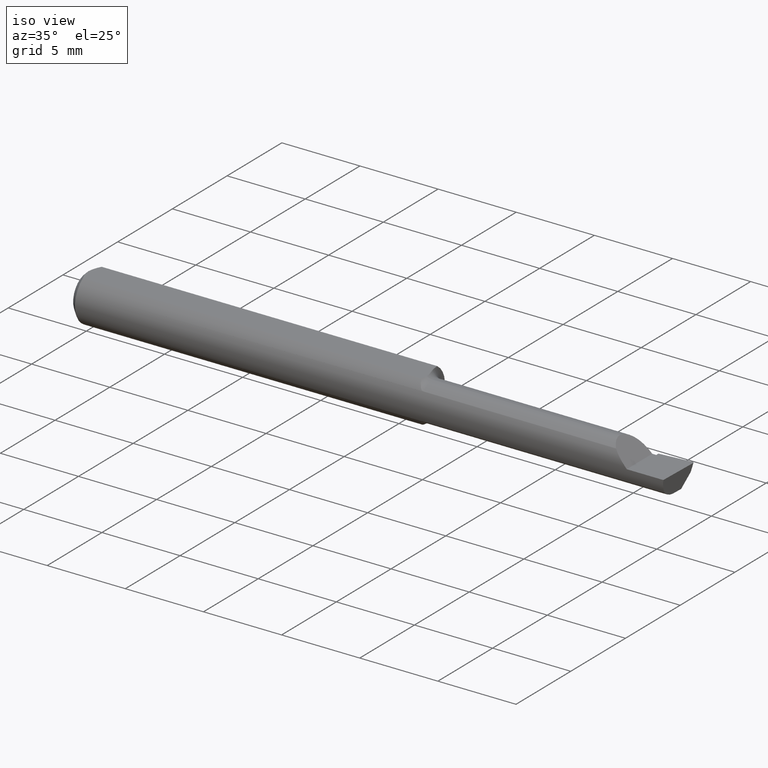
[diagram: clean part render]
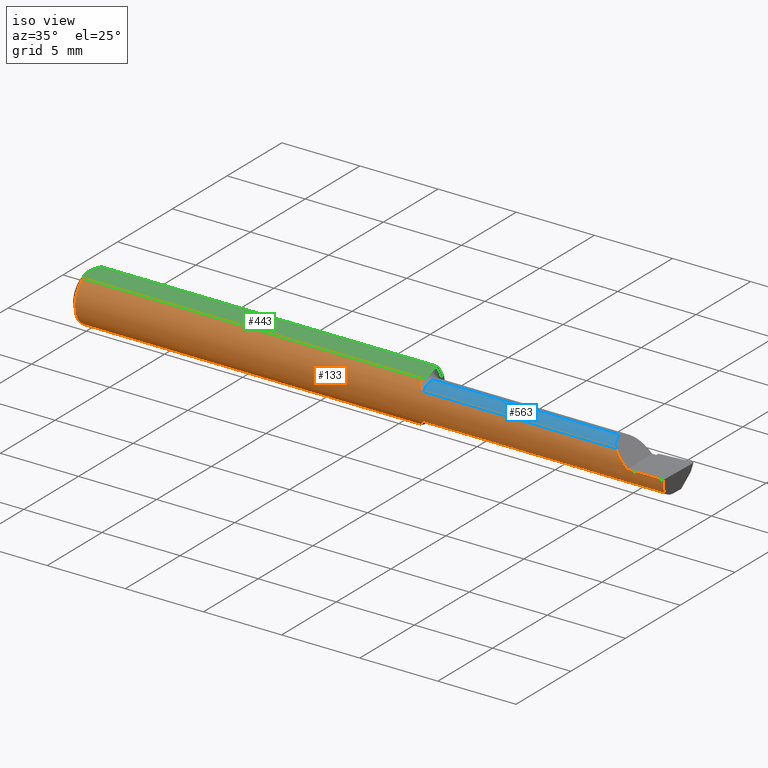
[diagram: same view with three faces highlighted in distinct colors, each labeled with its STEP entity id]
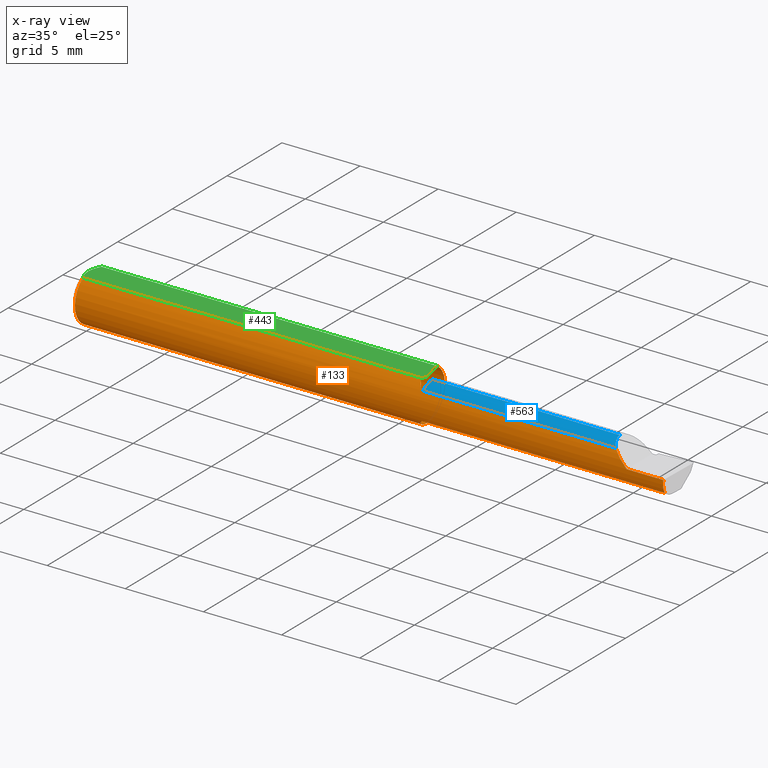
[diagram: x-ray of the same camera — body ghosted, the three highlighted faces saturated]
A machine part, iso view with three faces highlighted in distinct colors.
The next image is the same camera in x-ray (body ghosted, the three faces saturated) — at least one of them is partly hidden behind the body in this view.
Their STEP definitions:

[orange] entity #133 — the highlighted cylindrical surface (edge-blend (fillet) strip) has radius 1.5837 mm, axis along (-1, -0, -0).
#4 = CARTESIAN_POINT ( 'NONE',  ( 0.8697417421283761829, -0.03819491529868388607, 0.04955034320923033808 ) ) ;
#17 = DIRECTION ( 'NONE',  ( 0.0000000000000000000, 0.0000000000000000000, 1.000000000000000000 ) ) ;
#21 = ORIENTED_EDGE ( 'NONE', *, *, #432, .T. ) ;
#40 = CARTESIAN_POINT ( 'NONE',  ( 1.150000000000000133, -0.05210000000000008374, -0.03425072991922931825 ) ) ;
#45 = LINE ( 'NONE', #172, #649 ) ;
#54 = CARTESIAN_POINT ( 'NONE',  ( 0.8647104858884211431, -0.02227973916747851349, -0.05837485801745211089 ) ) ;
#60 = CIRCLE ( 'NONE', #287, 0.06235000000000000264 ) ;
#69 = CARTESIAN_POINT ( 'NONE',  ( 1.370749270080770632, -0.05210000000000011150, 0.03425072991922930438 ) ) ;
#75 = CARTESIAN_POINT ( 'NONE',  ( 0.8715797100125448615, -0.04200879032723227324, 0.04631940421101464478 ) ) ;
#80 = EDGE_CURVE ( 'NONE', #706, #112, #60, .T. ) ;
#85 = CARTESIAN_POINT ( 'NONE',  ( 0.8850000000000001199, -0.05210000000000019477, -0.03425072991922917254 ) ) ;
#88 = CARTESIAN_POINT ( 'NONE',  ( 0.01500000000000000465, 0.03386738844375223462, 0.05234999999999997988 ) ) ;
#89 = CARTESIAN_POINT ( 'NONE',  ( 0.8639435274990673319, -0.01839999999999995459, -0.05957316929625283003 ) ) ;
#96 = VERTEX_POINT ( 'NONE', #121 ) ;
#98 = DIRECTION ( 'NONE',  ( -1.000000000000000000, -0.0000000000000000000, -0.0000000000000000000 ) ) ;
#100 = EDGE_CURVE ( 'NONE', #130, #701, #534, .T. ) ;
#108 = CARTESIAN_POINT ( 'NONE',  ( 1.497171920470529161, -0.06235000000000005121, 3.552677088412748576E-19 ) ) ;
#112 = VERTEX_POINT ( 'NONE', #395 ) ;
#115 = ORIENTED_EDGE ( 'NONE', *, *, #119, .F. ) ;
#118 = CARTESIAN_POINT ( 'NONE',  ( 0.8780636144450135738, -0.04963912592730911066, -0.03775824298307028926 ) ) ;
#119 = EDGE_CURVE ( 'NONE', #112, #238, #317, .T. ) ;
#121 = CARTESIAN_POINT ( 'NONE',  ( 0.8850000000000001199, -0.05210000000000020171, 0.03425072991922915866 ) ) ;
#122 = CYLINDRICAL_SURFACE ( 'NONE', #457, 0.06235000000000000264 ) ;
#123 = CARTESIAN_POINT ( 'NONE',  ( 0.8690023436943704604, -0.03635371779854205260, -0.05080473676934860877 ) ) ;
#127 = VERTEX_POINT ( 'NONE', #608 ) ;
#130 = VERTEX_POINT ( 'NONE', #85 ) ;
#133 = ADVANCED_FACE ( 'NONE', ( #162 ), #122, .T. ) ;
#137 = CARTESIAN_POINT ( 'NONE',  ( 0.8766024100878114789, -0.04843664215652596777, 0.03931692004732154772 ) ) ;
#150 = DIRECTION ( 'NONE',  ( 0.0000000000000000000, 0.0000000000000000000, 1.000000000000000000 ) ) ;
#159 = CARTESIAN_POINT ( 'NONE',  ( 1.370749270080770632, -0.05210000000000011150, 0.03425072991922930438 ) ) ;
#162 = FACE_OUTER_BOUND ( 'NONE', #184, .T. ) ;
#163 =( BOUNDED_CURVE ( )  B_SPLINE_CURVE ( 3, ( #412, #605, #469, #108 ),
 .UNSPECIFIED., .F., .T. ) 
 B_SPLINE_CURVE_WITH_KNOTS ( ( 4, 4 ),
 ( 0.7791845851203687001, 1.360746882514706213 ),
 .UNSPECIFIED. ) 
 CURVE ( )  GEOMETRIC_REPRESENTATION_ITEM ( )  RATIONAL_B_SPLINE_CURVE ( ( 1.000000000000000000, 0.9720134746468969134, 0.9720134746468969134, 1.000000000000000000 ) ) 
 REPRESENTATION_ITEM ( '' )  );
#166 = CARTESIAN_POINT ( 'NONE',  ( 0.8600000000000000977, 0.03016902173913018487, -0.05456512281030705819 ) ) ;
#172 = CARTESIAN_POINT ( 'NONE',  ( 0.0000000000000000000, 0.03386738844375223462, 0.05234999999999997988 ) ) ;
#175 = CARTESIAN_POINT ( 'NONE',  ( 0.8810018602471946236, -0.05138041438525058763, -0.03535223831097206171 ) ) ;
#183 = ORIENTED_EDGE ( 'NONE', *, *, #679, .F. ) ;
#184 = EDGE_LOOP ( 'NONE', ( #423, #438, #21, #326, #183, #585, #441, #115, #582, #733, #764, #437, #613 ) ) ;
#191 = CARTESIAN_POINT ( 'NONE',  ( 0.8801117046627789930, -0.05090166660896887352, 0.03601608024180039114 ) ) ;
#200 = CARTESIAN_POINT ( 'NONE',  ( 0.01500000000000000465, 0.0000000000000000000, 0.0000000000000000000 ) ) ;
#219 = B_SPLINE_CURVE_WITH_KNOTS ( 'NONE', 3,
 ( #587, #460, #270, #645, #333, #508 ),
 .UNSPECIFIED., .F., .F.,
 ( 4, 2, 4 ),
 ( 0.001277683611626134232, 0.001926233481642343698, 0.002574783351658553165 ),
 .UNSPECIFIED. ) ;
#233 = AXIS2_PLACEMENT_3D ( 'NONE', #702, #328, #753 ) ;
#234 = DIRECTION ( 'NONE',  ( 1.000000000000000000, 0.0000000000000000000, 0.0000000000000000000 ) ) ;
#237 = CARTESIAN_POINT ( 'NONE',  ( 0.8850000000000001199, -0.05210000000000019477, -0.03425072991922917254 ) ) ;
#238 = VERTEX_POINT ( 'NONE', #417 ) ;
#239 = EDGE_CURVE ( 'NONE', #706, #552, #45, .T. ) ;
#249 = CARTESIAN_POINT ( 'NONE',  ( 1.493233423732482024, -0.05210000000000008374, -0.03425072991922931825 ) ) ;
#255 = VERTEX_POINT ( 'NONE', #166 ) ;
#257 = CARTESIAN_POINT ( 'NONE',  ( 0.8836283801985740372, -0.05210000000115982272, 0.03425072991746568041 ) ) ;
#270 = CARTESIAN_POINT ( 'NONE',  ( 0.8613962500143419465, -0.002002297547419349538, -0.06287403108402093987 ) ) ;
#275 = CARTESIAN_POINT ( 'NONE',  ( 2.249639673992775738E-32, -0.06234999999999999570, 1.836970198721025250E-16 ) ) ;
#287 = AXIS2_PLACEMENT_3D ( 'NONE', #725, #294, #671 ) ;
#294 = DIRECTION ( 'NONE',  ( -1.000000000000000000, -0.0000000000000000000, -0.0000000000000000000 ) ) ;
#303 = EDGE_CURVE ( 'NONE', #554, #127, #163, .T. ) ;
#304 = EDGE_CURVE ( 'NONE', #554, #130, #726, .T. ) ;
#317 = CIRCLE ( 'NONE', #329, 0.06235000000000000264 ) ;
#326 = ORIENTED_EDGE ( 'NONE', *, *, #557, .T. ) ;
#328 = DIRECTION ( 'NONE',  ( 1.000000000000000000, 0.0000000000000000000, 0.0000000000000000000 ) ) ;
#329 = AXIS2_PLACEMENT_3D ( 'NONE', #200, #392, #150 ) ;
#331 = LINE ( 'NONE', #396, #495 ) ;
#333 = CARTESIAN_POINT ( 'NONE',  ( 0.8600000000000000977, 0.02282614954851994518, -0.05862499217990974065 ) ) ;
#346 = EDGE_CURVE ( 'NONE', #701, #255, #219, .T. ) ;
#364 = EDGE_CURVE ( 'NONE', #255, #552, #492, .T. ) ;
#374 = VECTOR ( 'NONE', #642, 39.37007874015748143 ) ;
#392 = DIRECTION ( 'NONE',  ( -1.000000000000000000, -0.0000000000000000000, -0.0000000000000000000 ) ) ;
#395 = CARTESIAN_POINT ( 'NONE',  ( 0.01500000000000000465, 0.0000000000000000000, -0.06235000000000000264 ) ) ;
#396 = CARTESIAN_POINT ( 'NONE',  ( 0.0000000000000000000, -0.03386738844375222768, 0.05234999999999997988 ) ) ;
#412 = CARTESIAN_POINT ( 'NONE',  ( 1.493233423732482024, -0.05210000000000008374, -0.03425072991922931825 ) ) ;
#417 = CARTESIAN_POINT ( 'NONE',  ( 0.01500000000000185039, -0.03386738844380016850, 0.05235000000000000070 ) ) ;
#418 = VERTEX_POINT ( 'NONE', #159 ) ;
#423 = ORIENTED_EDGE ( 'NONE', *, *, #304, .F. ) ;
#424 = CARTESIAN_POINT ( 'NONE',  ( 0.8656294582975113672, -0.02606820000987083302, -0.05677892429946720249 ) ) ;
#432 = EDGE_CURVE ( 'NONE', #127, #593, #686, .T. ) ;
#437 = ORIENTED_EDGE ( 'NONE', *, *, #346, .F. ) ;
#438 = ORIENTED_EDGE ( 'NONE', *, *, #303, .T. ) ;
#439 = CARTESIAN_POINT ( 'NONE',  ( 1.380994055934046782, -0.05883495956508443675, 0.02400594406595336905 ) ) ;
#441 = ORIENTED_EDGE ( 'NONE', *, *, #741, .T. ) ;
#448 =( BOUNDED_CURVE ( )  B_SPLINE_CURVE ( 3, ( #734, #785, #439, #69 ),
 .UNSPECIFIED., .F., .F. ) 
 B_SPLINE_CURVE_WITH_KNOTS ( ( 4, 4 ),
 ( 4.712388980384689674, 5.293951277779025411 ),
 .UNSPECIFIED. ) 
 CURVE ( )  GEOMETRIC_REPRESENTATION_ITEM ( )  RATIONAL_B_SPLINE_CURVE ( ( 1.000000000000000000, 0.9720134746468970244, 0.9720134746468970244, 1.000000000000000000 ) ) 
 REPRESENTATION_ITEM ( '' )  );
#457 = AXIS2_PLACEMENT_3D ( 'NONE', #510, #578, #17 ) ;
#460 = CARTESIAN_POINT ( 'NONE',  ( 0.8623860608652272886, -0.01052139226165772767, -0.06200658662318050268 ) ) ;
#469 = CARTESIAN_POINT ( 'NONE',  ( 1.495666027076596238, -0.06235000000000000958, -0.01226031473995681589 ) ) ;
#475 = VECTOR ( 'NONE', #583, 39.37007874015748143 ) ;
#476 = CARTESIAN_POINT ( 'NONE',  ( 0.8639435274990673319, -0.01839999999999995459, -0.05957316929625283003 ) ) ;
#481 = CARTESIAN_POINT ( 'NONE',  ( 0.8736313994831703678, -0.04510599191766697519, -0.04319271381807379684 ) ) ;
#491 = CARTESIAN_POINT ( 'NONE',  ( 0.8600000000000000977, 0.03386738844375224156, 0.05235000000000000070 ) ) ;
#492 = CIRCLE ( 'NONE', #233, 0.06235000000000000264 ) ;
#495 = VECTOR ( 'NONE', #707, 39.37007874015748143 ) ;
#499 = CARTESIAN_POINT ( 'NONE',  ( 0.8752324438157197406, -0.04692169178955606090, 0.04112849538229045032 ) ) ;
#508 = CARTESIAN_POINT ( 'NONE',  ( 0.8600000000000000977, 0.03016902173913018487, -0.05456512281030705819 ) ) ;
#510 = CARTESIAN_POINT ( 'NONE',  ( 0.0000000000000000000, 0.0000000000000000000, 0.0000000000000000000 ) ) ;
#534 = B_SPLINE_CURVE_WITH_KNOTS ( 'NONE', 3,
 ( #237, #606, #175, #118, #551, #481, #555, #123, #611, #424, #54, #89 ),
 .UNSPECIFIED., .F., .F.,
 ( 4, 2, 2, 2, 2, 4 ),
 ( 1.968188672663559732E-07, 0.0001598826679621268790, 0.0003195685170569873956, 0.0006389402152467030076, 0.0009583119134364185112, 0.001277683611626134232 ),
 .UNSPECIFIED. ) ;
#541 = VECTOR ( 'NONE', #98, 39.37007874015748143 ) ;
#543 = LINE ( 'NONE', #598, #374 ) ;
#551 = CARTESIAN_POINT ( 'NONE',  ( 0.8768557543361660267, -0.04856891343705602160, -0.03913748562448246537 ) ) ;
#552 = VERTEX_POINT ( 'NONE', #491 ) ;
#554 = VERTEX_POINT ( 'NONE', #249 ) ;
#555 = CARTESIAN_POINT ( 'NONE',  ( 0.8719606783407130024, -0.04239780856895216526, -0.04588180363204265311 ) ) ;
#557 = EDGE_CURVE ( 'NONE', #593, #418, #448, .T. ) ;
#567 = CARTESIAN_POINT ( 'NONE',  ( 0.8791789796355744535, -0.05033758282015996649, 0.03680695256572109192 ) ) ;
#578 = DIRECTION ( 'NONE',  ( -1.000000000000000000, -0.0000000000000000000, -0.0000000000000000000 ) ) ;
#582 = ORIENTED_EDGE ( 'NONE', *, *, #80, .F. ) ;
#583 = DIRECTION ( 'NONE',  ( -1.000000000000000000, -0.0000000000000000000, -0.0000000000000000000 ) ) ;
#585 = ORIENTED_EDGE ( 'NONE', *, *, #597, .F. ) ;
#587 = CARTESIAN_POINT ( 'NONE',  ( 0.8639435274990673319, -0.01839999999999995459, -0.05957316929625283003 ) ) ;
#593 = VERTEX_POINT ( 'NONE', #627 ) ;
#597 = EDGE_CURVE ( 'NONE', #682, #96, #763, .T. ) ;
#598 = CARTESIAN_POINT ( 'NONE',  ( 1.150000000000000133, -0.05210000000000008374, 0.03425072991922931825 ) ) ;
#605 = CARTESIAN_POINT ( 'NONE',  ( 1.494315395341277553, -0.05883495956508441593, -0.02400594406595342456 ) ) ;
#606 = CARTESIAN_POINT ( 'NONE',  ( 0.8828708008506146454, -0.05210000000000017395, -0.03425072991922920029 ) ) ;
#608 = CARTESIAN_POINT ( 'NONE',  ( 1.497171920470529161, -0.06235000000000005121, 3.552677088412748576E-19 ) ) ;
#611 = CARTESIAN_POINT ( 'NONE',  ( 0.8677747305127009314, -0.03308328010062955293, -0.05299899880320894235 ) ) ;
#613 = ORIENTED_EDGE ( 'NONE', *, *, #100, .F. ) ;
#627 = CARTESIAN_POINT ( 'NONE',  ( 1.405000000000000249, -0.06235000000000005121, 1.163414459189982046E-17 ) ) ;
#630 = CARTESIAN_POINT ( 'NONE',  ( 0.8823254665516396811, -0.05179156103573027969, 0.03472422648579300691 ) ) ;
#642 = DIRECTION ( 'NONE',  ( 1.000000000000000000, 0.0000000000000000000, 0.0000000000000000000 ) ) ;
#645 = CARTESIAN_POINT ( 'NONE',  ( 0.8602082692914423401, 0.01460127996857728608, -0.06118787137580497526 ) ) ;
#649 = VECTOR ( 'NONE', #234, 39.37007874015748143 ) ;
#654 = CARTESIAN_POINT ( 'NONE',  ( 0.8681439896686973245, -0.03386738844377055330, 0.05235000000000000070 ) ) ;
#671 = DIRECTION ( 'NONE',  ( 0.0000000000000000000, 0.0000000000000000000, 1.000000000000000000 ) ) ;
#679 = EDGE_CURVE ( 'NONE', #96, #418, #543, .T. ) ;
#682 = VERTEX_POINT ( 'NONE', #654 ) ;
#686 = LINE ( 'NONE', #275, #475 ) ;
#688 = CARTESIAN_POINT ( 'NONE',  ( 0.8681439896686973245, -0.03386738844377055330, 0.05235000000000000070 ) ) ;
#691 = CARTESIAN_POINT ( 'NONE',  ( 0.8850000000000001199, -0.05210000000000020171, 0.03425072991922915866 ) ) ;
#701 = VERTEX_POINT ( 'NONE', #476 ) ;
#702 = CARTESIAN_POINT ( 'NONE',  ( 0.8600000000000000977, 0.0000000000000000000, 0.0000000000000000000 ) ) ;
#706 = VERTEX_POINT ( 'NONE', #88 ) ;
#707 = DIRECTION ( 'NONE',  ( -1.000000000000000000, -0.0000000000000000000, -0.0000000000000000000 ) ) ;
#725 = CARTESIAN_POINT ( 'NONE',  ( 0.01500000000000000465, 0.0000000000000000000, 0.0000000000000000000 ) ) ;
#726 = LINE ( 'NONE', #40, #541 ) ;
#733 = ORIENTED_EDGE ( 'NONE', *, *, #239, .T. ) ;
#734 = CARTESIAN_POINT ( 'NONE',  ( 1.405000000000000249, -0.06235000000000005121, 1.163414459189982046E-17 ) ) ;
#741 = EDGE_CURVE ( 'NONE', #682, #238, #331, .T. ) ;
#753 = DIRECTION ( 'NONE',  ( 0.0000000000000000000, 0.0000000000000000000, -1.000000000000000000 ) ) ;
#763 = B_SPLINE_CURVE_WITH_KNOTS ( 'NONE', 3,
 ( #688, #4, #75, #499, #137, #567, #191, #630, #257, #691 ),
 .UNSPECIFIED., .F., .F.,
 ( 4, 2, 2, 2, 4 ),
 ( 3.799952872690624686E-07, 0.0004056523638566307500, 0.0006082885481413115433, 0.0007096066402836549757, 0.0008109247324259985165 ),
 .UNSPECIFIED. ) ;
#764 = ORIENTED_EDGE ( 'NONE', *, *, #364, .F. ) ;
#785 = CARTESIAN_POINT ( 'NONE',  ( 1.392739685260043325, -0.06235000000000000264, 0.01226031473995679161 ) ) ;

[blue] entity #563 — the highlighted cylindrical surface (edge-blend (fillet) strip) has radius 1.2205 mm, axis along (-1, -0, -0).
#63 = ORIENTED_EDGE ( 'NONE', *, *, #679, .T. ) ;
#66 = VERTEX_POINT ( 'NONE', #358 ) ;
#84 = CARTESIAN_POINT ( 'NONE',  ( 0.8850000000000001199, -0.01839999999999999969, 0.0000000000000000000 ) ) ;
#96 = VERTEX_POINT ( 'NONE', #121 ) ;
#109 = EDGE_LOOP ( 'NONE', ( #569, #398, #411, #63 ) ) ;
#121 = CARTESIAN_POINT ( 'NONE',  ( 0.8850000000000001199, -0.05210000000000020171, 0.03425072991922915866 ) ) ;
#149 = DIRECTION ( 'NONE',  ( 0.0000000000000000000, 0.0000000000000000000, 1.000000000000000000 ) ) ;
#159 = CARTESIAN_POINT ( 'NONE',  ( 1.370749270080770632, -0.05210000000000011150, 0.03425072991922930438 ) ) ;
#161 = EDGE_CURVE ( 'NONE', #514, #66, #559, .T. ) ;
#164 = CIRCLE ( 'NONE', #258, 0.04804999999999993304 ) ;
#258 = AXIS2_PLACEMENT_3D ( 'NONE', #84, #509, #149 ) ;
#298 =( BOUNDED_CURVE ( )  B_SPLINE_CURVE ( 3, ( #756, #458, #761, #407 ),
 .UNSPECIFIED., .F., .T. ) 
 B_SPLINE_CURVE_WITH_KNOTS ( ( 4, 4 ),
 ( 5.505891808168995816, 6.283185307179586232 ),
 .UNSPECIFIED. ) 
 CURVE ( )  GEOMETRIC_REPRESENTATION_ITEM ( )  RATIONAL_B_SPLINE_CURVE ( ( 1.000000000000000000, 0.9502818019828904728, 0.9502818019828904728, 1.000000000000000000 ) ) 
 REPRESENTATION_ITEM ( '' )  );
#305 = CARTESIAN_POINT ( 'NONE',  ( 1.356949999999999878, -0.01839999999999999969, 0.04804999999999996774 ) ) ;
#309 = CARTESIAN_POINT ( 'NONE',  ( 0.0000000000000000000, -0.01839999999999999969, 0.0000000000000000000 ) ) ;
#358 = CARTESIAN_POINT ( 'NONE',  ( 0.8850000000000001199, -0.01839999999999999969, 0.04804999999999993304 ) ) ;
#374 = VECTOR ( 'NONE', #642, 39.37007874015748143 ) ;
#398 = ORIENTED_EDGE ( 'NONE', *, *, #161, .T. ) ;
#407 = CARTESIAN_POINT ( 'NONE',  ( 1.356949999999999878, -0.01839999999999999969, 0.04804999999999996774 ) ) ;
#411 = ORIENTED_EDGE ( 'NONE', *, *, #641, .F. ) ;
#418 = VERTEX_POINT ( 'NONE', #159 ) ;
#434 = EDGE_CURVE ( 'NONE', #418, #514, #298, .T. ) ;
#458 = CARTESIAN_POINT ( 'NONE',  ( 1.361790413321597892, -0.04299473640227075705, 0.04320958667840185674 ) ) ;
#487 = FACE_OUTER_BOUND ( 'NONE', #109, .T. ) ;
#503 = DIRECTION ( 'NONE',  ( -1.000000000000000000, -0.0000000000000000000, -0.0000000000000000000 ) ) ;
#509 = DIRECTION ( 'NONE',  ( -1.000000000000000000, -0.0000000000000000000, -0.0000000000000000000 ) ) ;
#514 = VERTEX_POINT ( 'NONE', #305 ) ;
#526 = VECTOR ( 'NONE', #503, 39.37007874015748143 ) ;
#543 = LINE ( 'NONE', #598, #374 ) ;
#559 = LINE ( 'NONE', #633, #526 ) ;
#563 = ADVANCED_FACE ( 'NONE', ( #487 ), #778, .T. ) ;
#569 = ORIENTED_EDGE ( 'NONE', *, *, #434, .T. ) ;
#598 = CARTESIAN_POINT ( 'NONE',  ( 1.150000000000000133, -0.05210000000000008374, 0.03425072991922931825 ) ) ;
#623 = DIRECTION ( 'NONE',  ( 0.0000000000000000000, 0.0000000000000000000, 1.000000000000000000 ) ) ;
#633 = CARTESIAN_POINT ( 'NONE',  ( 0.0000000000000000000, -0.01839999999999999969, 0.04804999999999996774 ) ) ;
#641 = EDGE_CURVE ( 'NONE', #96, #66, #164, .T. ) ;
#642 = DIRECTION ( 'NONE',  ( 1.000000000000000000, 0.0000000000000000000, 0.0000000000000000000 ) ) ;
#679 = EDGE_CURVE ( 'NONE', #96, #418, #543, .T. ) ;
#684 = DIRECTION ( 'NONE',  ( -1.000000000000000000, -0.0000000000000000000, -0.0000000000000000000 ) ) ;
#756 = CARTESIAN_POINT ( 'NONE',  ( 1.370749270080770632, -0.05210000000000011150, 0.03425072991922930438 ) ) ;
#757 = AXIS2_PLACEMENT_3D ( 'NONE', #309, #684, #623 ) ;
#761 = CARTESIAN_POINT ( 'NONE',  ( 1.356949999999999656, -0.03117368152160952810, 0.04804999999999996774 ) ) ;
#778 = CYLINDRICAL_SURFACE ( 'NONE', #757, 0.04804999999999996774 ) ;

[green] entity #443 — the highlighted planar face has unit normal (0, -0, -1).
#16 = CARTESIAN_POINT ( 'NONE',  ( 0.8709817975471366713, -0.01840000000000274055, 0.05235000000000000070 ) ) ;
#33 = B_SPLINE_CURVE_WITH_KNOTS ( 'NONE', 3,
 ( #101, #659, #342, #107, #349, #661, #285, #767, #345, #712 ),
 .UNSPECIFIED., .F., .F.,
 ( 4, 2, 2, 2, 4 ),
 ( 0.008710904206567299940, 0.009350419755586255460, 0.009510298642840996075, 0.009670177530095734955, 0.009989935304605212715 ),
 .UNSPECIFIED. ) ;
#45 = LINE ( 'NONE', #172, #649 ) ;
#56 = LINE ( 'NONE', #243, #386 ) ;
#57 = CARTESIAN_POINT ( 'NONE',  ( 0.006064493299689855191, 0.01189382783781397362, 0.05235000000000000070 ) ) ;
#62 = CARTESIAN_POINT ( 'NONE',  ( 0.009669996313769786342, 0.02323004575534281385, 0.05234999999999998682 ) ) ;
#68 = CARTESIAN_POINT ( 'NONE',  ( 0.01500000000000185039, -0.03386738844380016850, 0.05235000000000000070 ) ) ;
#78 = ORIENTED_EDGE ( 'NONE', *, *, #741, .F. ) ;
#79 = ORIENTED_EDGE ( 'NONE', *, *, #179, .F. ) ;
#88 = CARTESIAN_POINT ( 'NONE',  ( 0.01500000000000000465, 0.03386738844375223462, 0.05234999999999997988 ) ) ;
#101 = CARTESIAN_POINT ( 'NONE',  ( 0.8600000000000000977, 0.03254879782683779005, 0.05235000000000000070 ) ) ;
#107 = CARTESIAN_POINT ( 'NONE',  ( 0.8657332775895891785, 0.004426912553965744665, 0.05234999999999998682 ) ) ;
#128 = CARTESIAN_POINT ( 'NONE',  ( 0.004999999999989946514, 7.898418262501303575E-16, 0.05235000000000000070 ) ) ;
#131 = CARTESIAN_POINT ( 'NONE',  ( 0.009678036133109314473, -0.02325481837211496733, 0.05235000000000000070 ) ) ;
#172 = CARTESIAN_POINT ( 'NONE',  ( 0.0000000000000000000, 0.03386738844375223462, 0.05234999999999997988 ) ) ;
#178 = PLANE ( 'NONE',  #723 ) ;
#179 = EDGE_CURVE ( 'NONE', #472, #636, #33, .T. ) ;
#185 = CARTESIAN_POINT ( 'NONE',  ( 0.004999999999998894218, -0.005957634400466962389, 0.05235000000000000070 ) ) ;
#197 = CARTESIAN_POINT ( 'NONE',  ( 0.8706711879428687961, -0.02367561104898160962, 0.05235000000000000070 ) ) ;
#234 = DIRECTION ( 'NONE',  ( 1.000000000000000000, 0.0000000000000000000, 0.0000000000000000000 ) ) ;
#238 = VERTEX_POINT ( 'NONE', #417 ) ;
#239 = EDGE_CURVE ( 'NONE', #706, #552, #45, .T. ) ;
#243 = CARTESIAN_POINT ( 'NONE',  ( 0.8600000000000000977, 0.1123499999999999915, 0.05234999999999998682 ) ) ;
#265 = CARTESIAN_POINT ( 'NONE',  ( 0.8689259844007443112, -0.03134776909451142402, 0.05235000000000000070 ) ) ;
#285 = CARTESIAN_POINT ( 'NONE',  ( 0.8684726880402972027, -0.003926822060867268642, 0.05235000000000000070 ) ) ;
#316 = CARTESIAN_POINT ( 'NONE',  ( 0.004999999999989946514, 7.898418262501303575E-16, 0.05235000000000000070 ) ) ;
#331 = LINE ( 'NONE', #396, #495 ) ;
#338 = DIRECTION ( 'NONE',  ( 0.0000000000000000000, -7.598598113218357399E-17, -1.000000000000000000 ) ) ;
#342 = CARTESIAN_POINT ( 'NONE',  ( 0.8623037607715414721, 0.01498942864105884051, 0.05235000000000000764 ) ) ;
#345 = CARTESIAN_POINT ( 'NONE',  ( 0.8709817975474822838, -0.01413225355780886247, 0.05235000000000000070 ) ) ;
#349 = CARTESIAN_POINT ( 'NONE',  ( 0.8664444859557653977, 0.002321921504987281819, 0.05235000000000000070 ) ) ;
#367 = CARTESIAN_POINT ( 'NONE',  ( 0.004999999999999278459, 0.005945714695019506738, 0.05235000000000000070 ) ) ;
#386 = VECTOR ( 'NONE', #729, 39.37007874015748143 ) ;
#390 = CARTESIAN_POINT ( 'NONE',  ( 0.8709817975474694052, -0.02106709414031690888, 0.05235000000000000070 ) ) ;
#391 = ORIENTED_EDGE ( 'NONE', *, *, #468, .F. ) ;
#396 = CARTESIAN_POINT ( 'NONE',  ( 0.0000000000000000000, -0.03386738844375222768, 0.05234999999999997988 ) ) ;
#417 = CARTESIAN_POINT ( 'NONE',  ( 0.01500000000000185039, -0.03386738844380016850, 0.05235000000000000070 ) ) ;
#443 = ADVANCED_FACE ( 'NONE', ( #482 ), #178, .F. ) ;
#447 = EDGE_CURVE ( 'NONE', #552, #472, #56, .T. ) ;
#454 = ORIENTED_EDGE ( 'NONE', *, *, #447, .F. ) ;
#468 = EDGE_CURVE ( 'NONE', #604, #706, #596, .T. ) ;
#472 = VERTEX_POINT ( 'NONE', #616 ) ;
#482 = FACE_OUTER_BOUND ( 'NONE', #548, .T. ) ;
#486 = DIRECTION ( 'NONE',  ( 0.0000000000000000000, 1.000000000000000000, -7.598598113218357399E-17 ) ) ;
#489 = CARTESIAN_POINT ( 'NONE',  ( 0.01218518006020415101, 0.02868529347538066598, 0.05235000000000000070 ) ) ;
#491 = CARTESIAN_POINT ( 'NONE',  ( 0.8600000000000000977, 0.03386738844375224156, 0.05235000000000000070 ) ) ;
#495 = VECTOR ( 'NONE', #707, 39.37007874015748143 ) ;
#524 = ORIENTED_EDGE ( 'NONE', *, *, #656, .F. ) ;
#531 = CARTESIAN_POINT ( 'NONE',  ( 1.500000000000000222, 0.1123499999999999915, 0.05234999999999998682 ) ) ;
#532 = EDGE_CURVE ( 'NONE', #238, #604, #709, .T. ) ;
#548 = EDGE_LOOP ( 'NONE', ( #79, #454, #730, #391, #762, #78, #524 ) ) ;
#552 = VERTEX_POINT ( 'NONE', #491 ) ;
#556 = CARTESIAN_POINT ( 'NONE',  ( 0.01500000000000000465, 0.03386738844375223462, 0.05234999999999997988 ) ) ;
#561 = CARTESIAN_POINT ( 'NONE',  ( 0.006057557792978150897, -0.01187252718384441963, 0.05234999999999998682 ) ) ;
#596 = B_SPLINE_CURVE_WITH_KNOTS ( 'NONE', 3,
 ( #128, #367, #57, #62, #489, #556 ),
 .UNSPECIFIED., .F., .F.,
 ( 4, 2, 4 ),
 ( 0.003037199019464981251, 0.003488061124369675782, 0.003938923229274369879 ),
 .UNSPECIFIED. ) ;
#604 = VERTEX_POINT ( 'NONE', #316 ) ;
#616 = CARTESIAN_POINT ( 'NONE',  ( 0.8600000000000000977, 0.03254879782683779005, 0.05235000000000000070 ) ) ;
#620 = CARTESIAN_POINT ( 'NONE',  ( 0.004999999999989946514, 7.898418262501303575E-16, 0.05235000000000000070 ) ) ;
#634 = CARTESIAN_POINT ( 'NONE',  ( 0.8709817975471366713, -0.01840000000000274055, 0.05235000000000000070 ) ) ;
#636 = VERTEX_POINT ( 'NONE', #634 ) ;
#638 = CARTESIAN_POINT ( 'NONE',  ( 0.8696390223050103341, -0.02881514531779547778, 0.05234999999999998682 ) ) ;
#649 = VECTOR ( 'NONE', #234, 39.37007874015748143 ) ;
#653 = B_SPLINE_CURVE_WITH_KNOTS ( 'NONE', 3,
 ( #16, #390, #197, #638, #265, #700 ),
 .UNSPECIFIED., .F., .F.,
 ( 4, 2, 4 ),
 ( 0.0004198066361325434497, 0.0006196367099741918651, 0.0008194667838158401722 ),
 .UNSPECIFIED. ) ;
#654 = CARTESIAN_POINT ( 'NONE',  ( 0.8681439896686973245, -0.03386738844377055330, 0.05235000000000000070 ) ) ;
#656 = EDGE_CURVE ( 'NONE', #636, #682, #653, .T. ) ;
#659 = CARTESIAN_POINT ( 'NONE',  ( 0.8599999999999988765, 0.02370330699131453431, 0.05234999999999997988 ) ) ;
#661 = CARTESIAN_POINT ( 'NONE',  ( 0.8678289663216182115, -0.001899322570691439147, 0.05235000000000000070 ) ) ;
#681 = CARTESIAN_POINT ( 'NONE',  ( 0.01216137397042176341, -0.02864146636719542074, 0.05235000000000000070 ) ) ;
#682 = VERTEX_POINT ( 'NONE', #654 ) ;
#700 = CARTESIAN_POINT ( 'NONE',  ( 0.8681439896686973245, -0.03386738844377055330, 0.05235000000000000070 ) ) ;
#706 = VERTEX_POINT ( 'NONE', #88 ) ;
#707 = DIRECTION ( 'NONE',  ( -1.000000000000000000, -0.0000000000000000000, -0.0000000000000000000 ) ) ;
#709 = B_SPLINE_CURVE_WITH_KNOTS ( 'NONE', 3,
 ( #68, #681, #131, #561, #185, #620 ),
 .UNSPECIFIED., .F., .F.,
 ( 4, 2, 4 ),
 ( 0.002133667072902290223, 0.002585433046183635737, 0.003037199019464981251 ),
 .UNSPECIFIED. ) ;
#712 = CARTESIAN_POINT ( 'NONE',  ( 0.8709817975471366713, -0.01840000000000274055, 0.05235000000000000070 ) ) ;
#723 = AXIS2_PLACEMENT_3D ( 'NONE', #531, #338, #486 ) ;
#729 = DIRECTION ( 'NONE',  ( 0.0000000000000000000, -1.000000000000000000, 7.598598113218357399E-17 ) ) ;
#730 = ORIENTED_EDGE ( 'NONE', *, *, #239, .F. ) ;
#741 = EDGE_CURVE ( 'NONE', #682, #238, #331, .T. ) ;
#762 = ORIENTED_EDGE ( 'NONE', *, *, #532, .F. ) ;
#767 = CARTESIAN_POINT ( 'NONE',  ( 0.8701689947020403437, -0.01001121285792168011, 0.05235000000000001458 ) ) ;